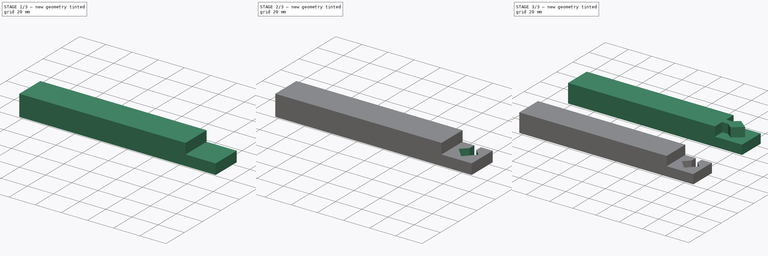
[diagram: build sequence overview — one tinted view per stage of 3, left to right]
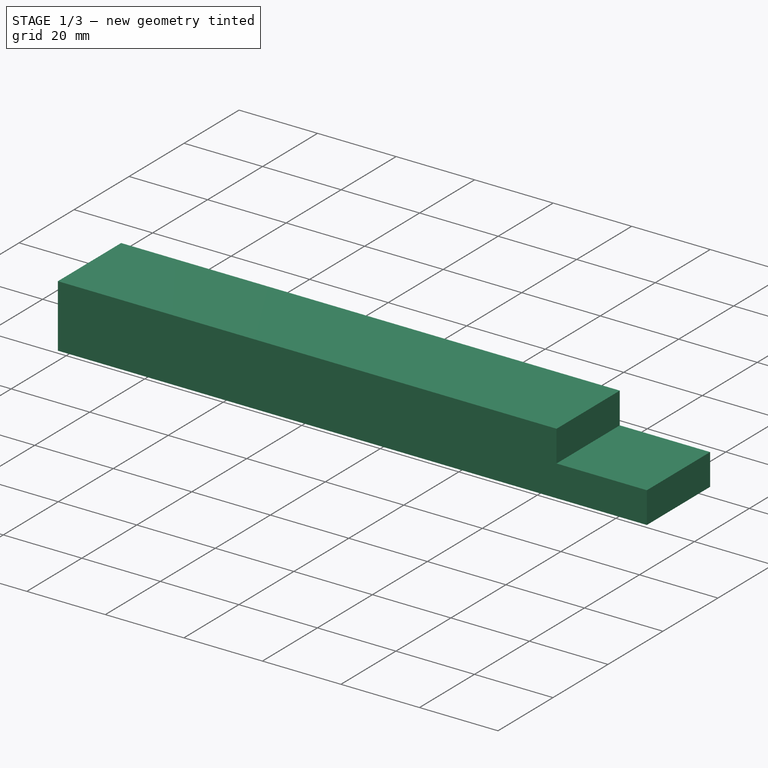
[diagram: stage 1 of 3 — iso view after this stage's code; geometry added in this stage tinted green]
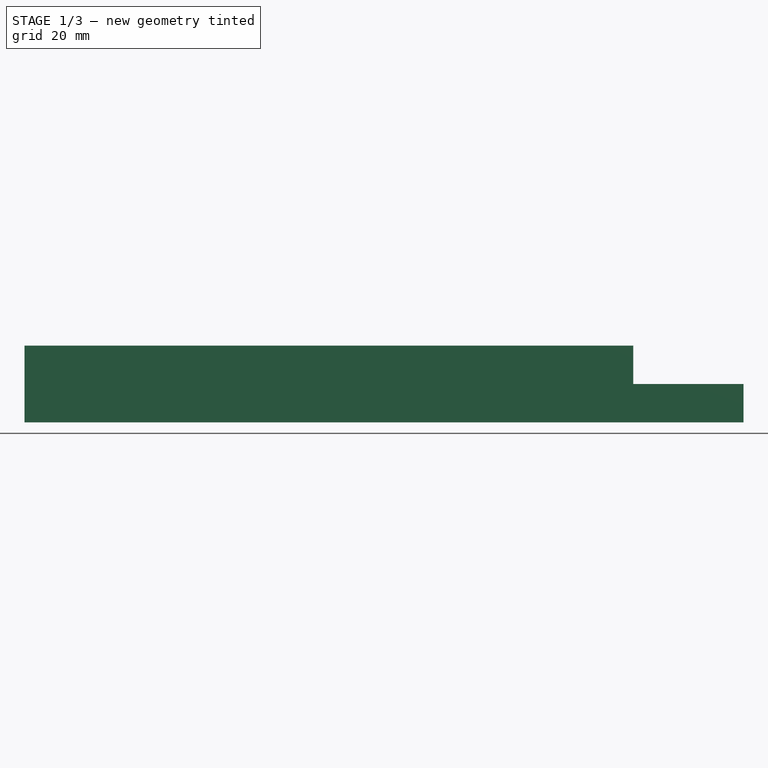
[diagram: stage 1 of 3 — front view after this stage's code; geometry added in this stage tinted green]
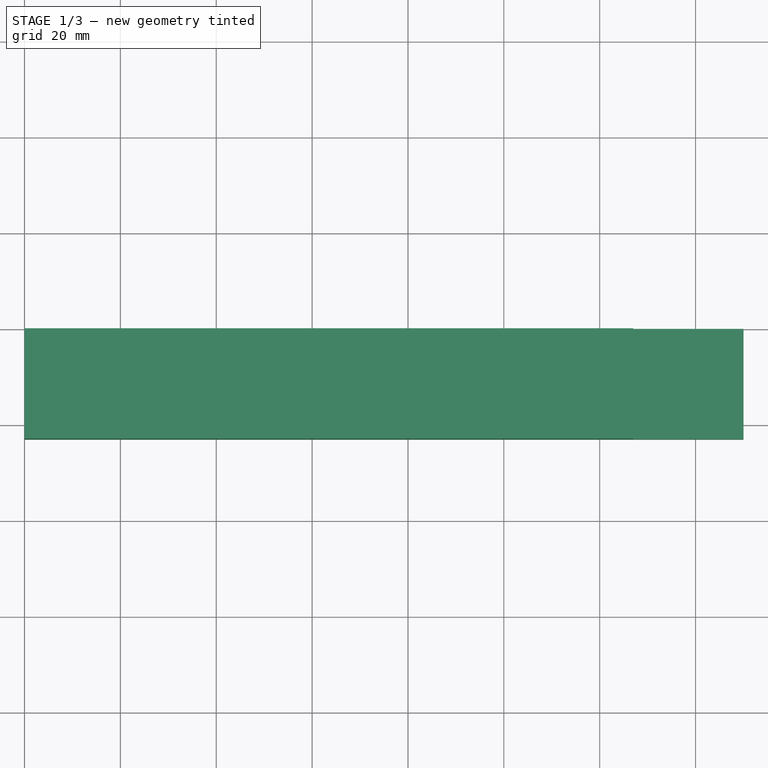
[diagram: stage 1 of 3 — top view after this stage's code; geometry added in this stage tinted green]
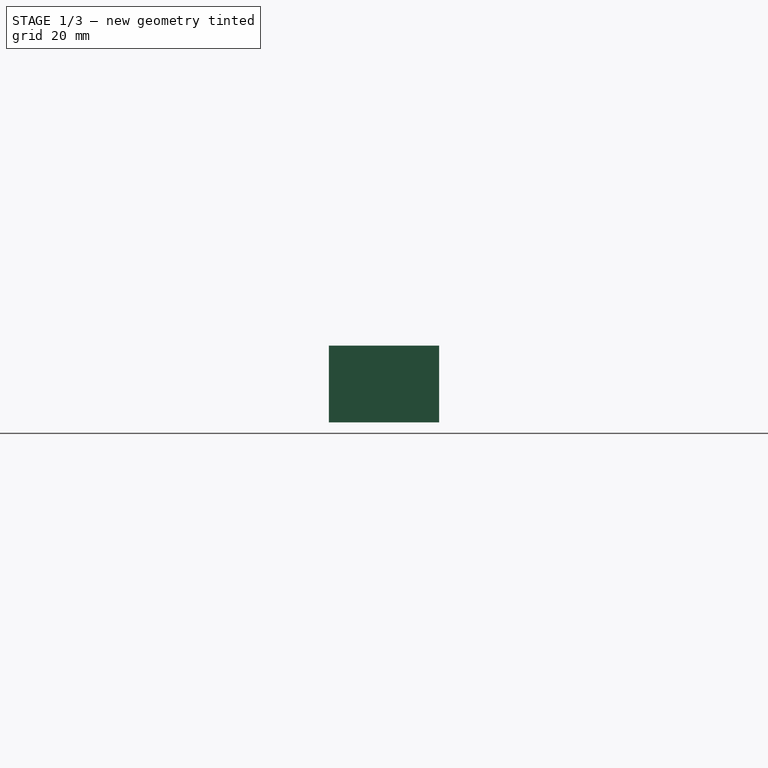
[diagram: stage 1 of 3 — right view after this stage's code; geometry added in this stage tinted green]
FCSTD DOCUMENT  (FreeCAD 0.18.3R)
Label: Puzzle_eckig
License: All rights reserved
LicenseURL: http://en.wikipedia.org/wiki/All_rights_reserved
objects: Sketcher::SketchObject×5, PartDesign::Pocket×3, PartDesign::Pad×2, PartDesign::Body×2
note: 17 computed .brp shape members not serialized (recipe doc carries the construction recipe); baked Part::Feature solids carry a one-line shape summary decoded from their .brp

FEATURE [Sketcher::SketchObject] Sketch003
  MapMode = 5
  Support = -> [XY_Plane001]
  sketch-geometry (4):
    g0: LineSegment StartX=0 StartY=-60 StartZ=0 EndX=150 EndY=-60 EndZ=0
    g1: LineSegment StartX=150 StartY=-60 StartZ=0 EndX=150 EndY=-83 EndZ=0
    g2: LineSegment StartX=150 StartY=-83 StartZ=0 EndX=0 EndY=-83 EndZ=0
    g3: LineSegment StartX=0 StartY=-83 StartZ=0 EndX=0 EndY=-60 EndZ=0
  constraints (12):
    c: Coincident(g0,g1)
    c: Coincident(g1,g2)
    c: Coincident(g2,g3)
    c: Coincident(g3,g0)
    c: Horizontal(g0)
    c: Horizontal(g2)
    c: Vertical(g1)
    c: Vertical(g3)
    c: DistanceY(g3,g3) = 23
    c: DistanceX(g0,g0) = 150
    c: Vertical(g0,g-1)
    c: DistanceY(g0,g-1) = 60
FEATURE [PartDesign::Pad] Pad001
  Length = 16
  Length2 = 100
  Profile = -> Sketch003
  Type = 0
FEATURE [PartDesign::Body] Body  label="Schlüssel"
  Group = -> [Sketch,Pad,Sketch001,Pocket]
  Origin = -> Origin
  Tip = -> Pocket
FEATURE [Sketcher::SketchObject] Sketch005
  ExternalGeometry = -> [Pad001]
  MapMode = 5
  Placement = pos=(0,0,16) rot=(0,0,1;0rad)
  Support = -> [Pad001]
  sketch-geometry (4):
    g0: LineSegment StartX=127 StartY=-58.207 StartZ=0 EndX=157 EndY=-58.207 EndZ=0
    g1: LineSegment StartX=157 StartY=-58.207 StartZ=0 EndX=157 EndY=-87.2765 EndZ=0
    g2: LineSegment StartX=157 StartY=-87.2765 StartZ=0 EndX=127 EndY=-87.2765 EndZ=0
    g3: LineSegment StartX=127 StartY=-87.2765 StartZ=0 EndX=127 EndY=-58.207 EndZ=0
  constraints (10):
    c: Coincident(g0,g1)
    c: Coincident(g1,g2)
    c: Coincident(g2,g3)
    c: Coincident(g3,g0)
    c: Horizontal(g0)
    c: Horizontal(g2)
    c: Vertical(g1)
    c: Vertical(g3)
    c: DistanceX(g0,g-3) = 23
    c: DistanceX(g2,g2) = 30
FEATURE [PartDesign::Pocket] Pocket001
  BaseFeature = -> Pad001
  Length = 8
  Length2 = 100
  Profile = -> Sketch005
  Type = 0
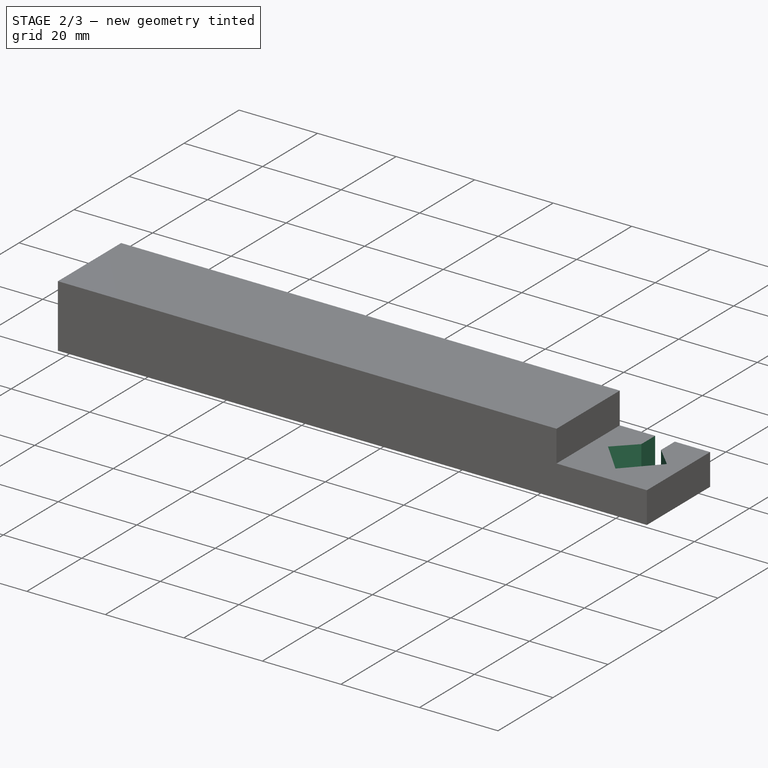
[diagram: stage 2 of 3 — iso view after this stage's code; geometry added in this stage tinted green]
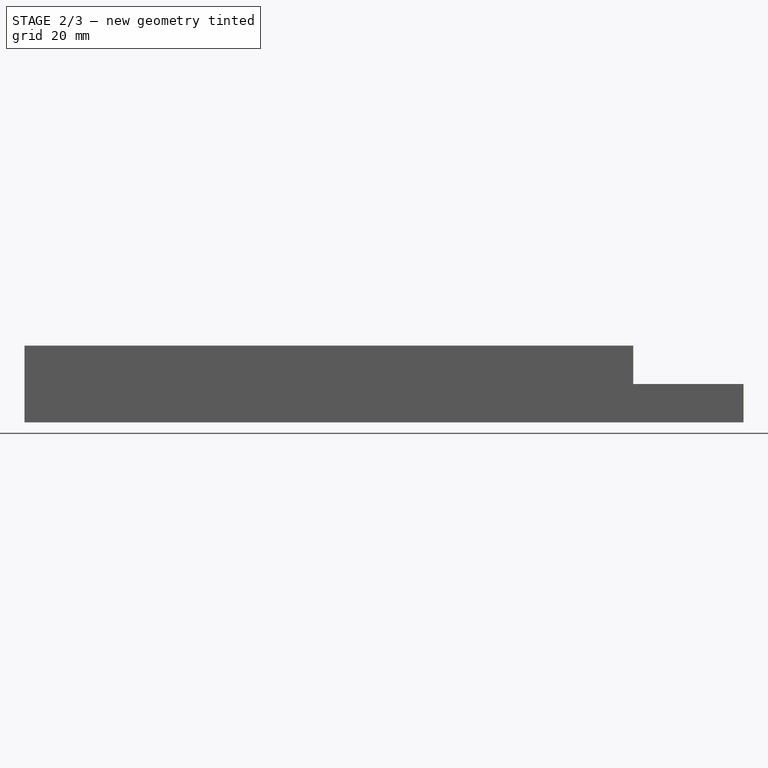
[diagram: stage 2 of 3 — front view after this stage's code; geometry added in this stage tinted green]
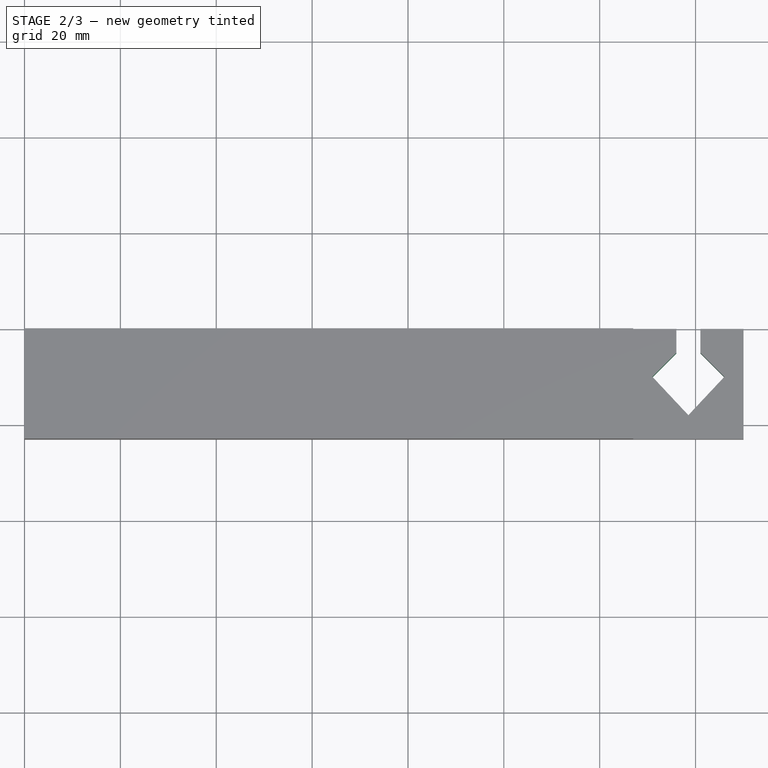
[diagram: stage 2 of 3 — top view after this stage's code; geometry added in this stage tinted green]
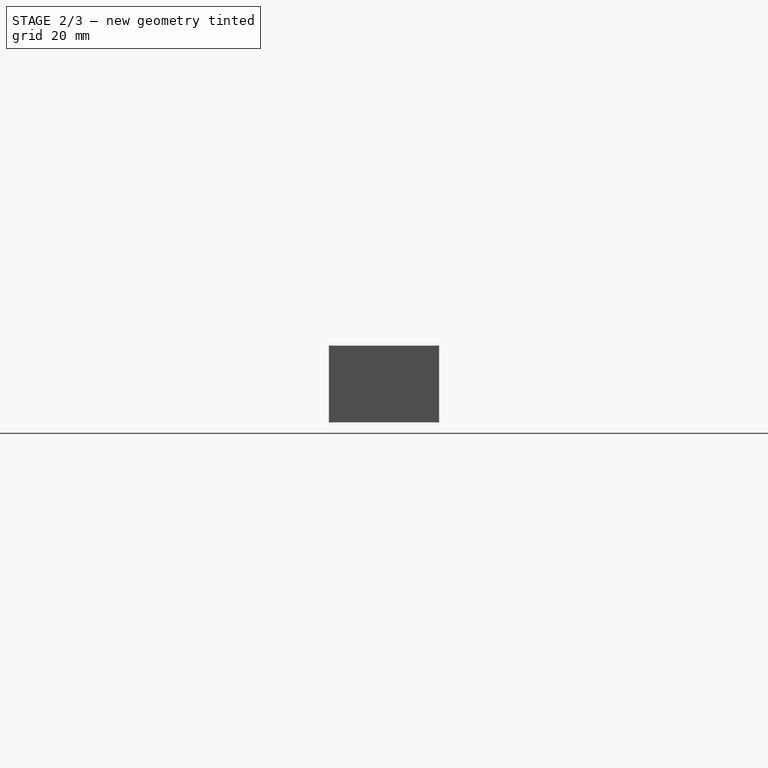
[diagram: stage 2 of 3 — right view after this stage's code; geometry added in this stage tinted green]
FEATURE [Sketcher::SketchObject] Sketch006
  ExternalGeometry = -> [Pocket001]
  MapMode = 5
  Placement = pos=(0,0,8) rot=(0,0,1;0rad)
  Support = -> [Pocket001]
  sketch-geometry (7):
    g0: LineSegment StartX=136 StartY=-55 StartZ=0 EndX=141 EndY=-55 EndZ=0
    g1: LineSegment StartX=141 StartY=-55 StartZ=0 EndX=141 EndY=-65 EndZ=0
    g2: LineSegment StartX=141 StartY=-65 StartZ=0 EndX=146 EndY=-70 EndZ=0
    g3: LineSegment StartX=146 StartY=-70 StartZ=0 EndX=138.5 EndY=-78 EndZ=0
    g4: LineSegment StartX=138.5 StartY=-78 StartZ=0 EndX=131 EndY=-70 EndZ=0
    g5: LineSegment StartX=131 StartY=-70 StartZ=0 EndX=136 EndY=-65 EndZ=0
    g6: LineSegment StartX=136 StartY=-65 StartZ=0 EndX=136 EndY=-55 EndZ=0
  constraints (21):
    c: Coincident(g0,g1)
    c: Coincident(g1,g2)
    c: Coincident(g2,g3)
    c: Coincident(g3,g4)
    c: Coincident(g4,g5)
    c: Coincident(g5,g6)
    c: Coincident(g6,g0)
    c: Horizontal(g0)
    c: Vertical(g6)
    c: Vertical(g1)
    c: Equal(g1,g6)
    c: DistanceY(g1,g1) = 10
    c: DistanceY(g-3,g0) = 5
    c: DistanceY(g2,g1) = 5
    c: DistanceY(g4,g5) = 5
    c: DistanceY(g3,g2) = 8
    c: DistanceX(g3,g-3) = 11.5
    c: DistanceX(g2,g2) = 5
    c: DistanceX(g0,g0) = 5
    c: DistanceX(g4,g5) = 5
    c: DistanceX(g2,g-3) = 4
FEATURE [PartDesign::Pocket] Pocket002
  BaseFeature = -> Pocket001
  Length = 10
  Length2 = 100
  Profile = -> Sketch006
  Type = 0
FEATURE [PartDesign::Body] Body001  label="Schloss"
  Group = -> [Sketch003,Pad001,Sketch005,Pocket001,Sketch006,Pocket002]
  Origin = -> Origin001
  Tip = -> Pocket002
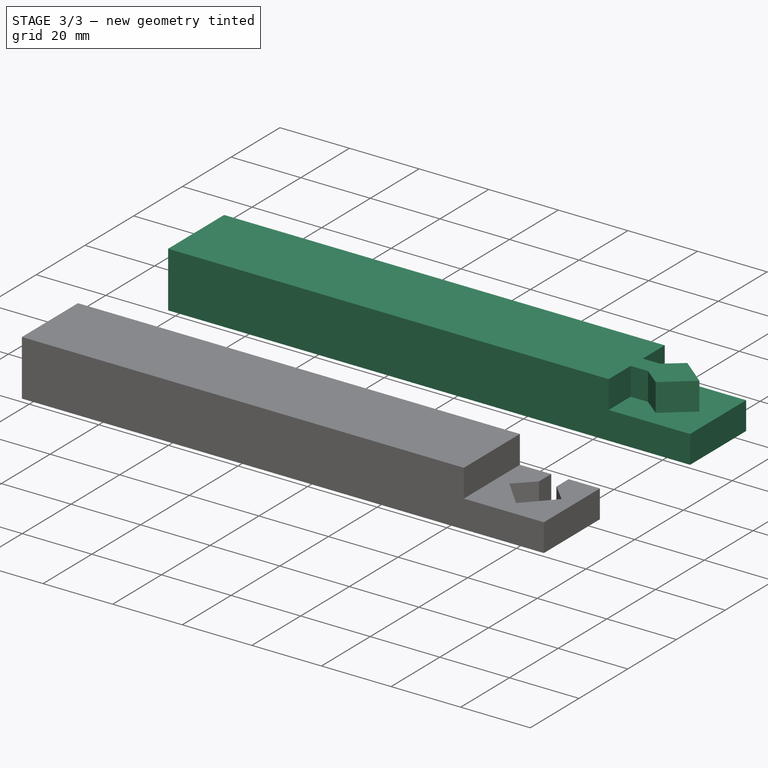
[diagram: stage 3 of 3 — iso view after this stage's code; geometry added in this stage tinted green]
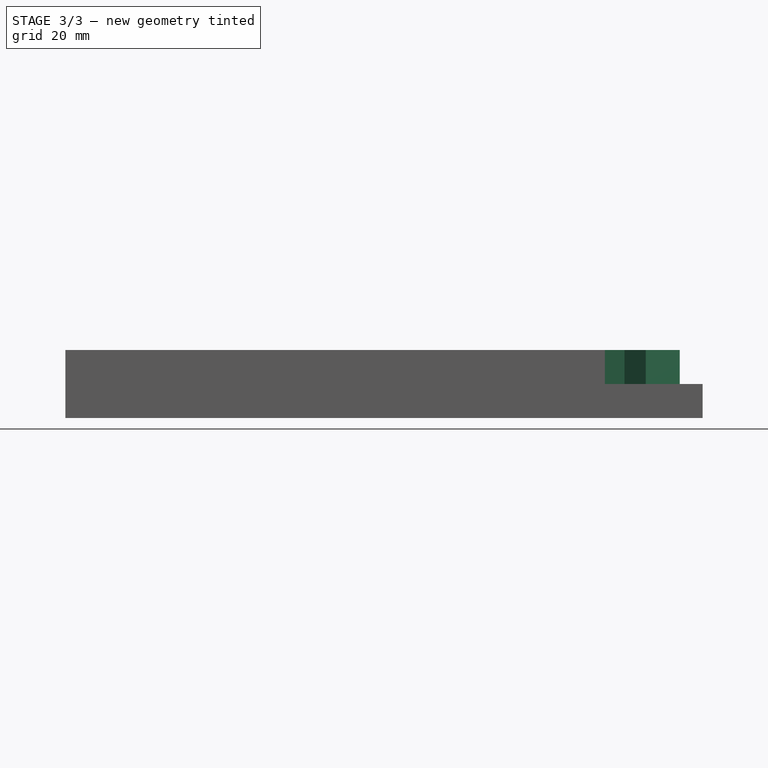
[diagram: stage 3 of 3 — front view after this stage's code; geometry added in this stage tinted green]
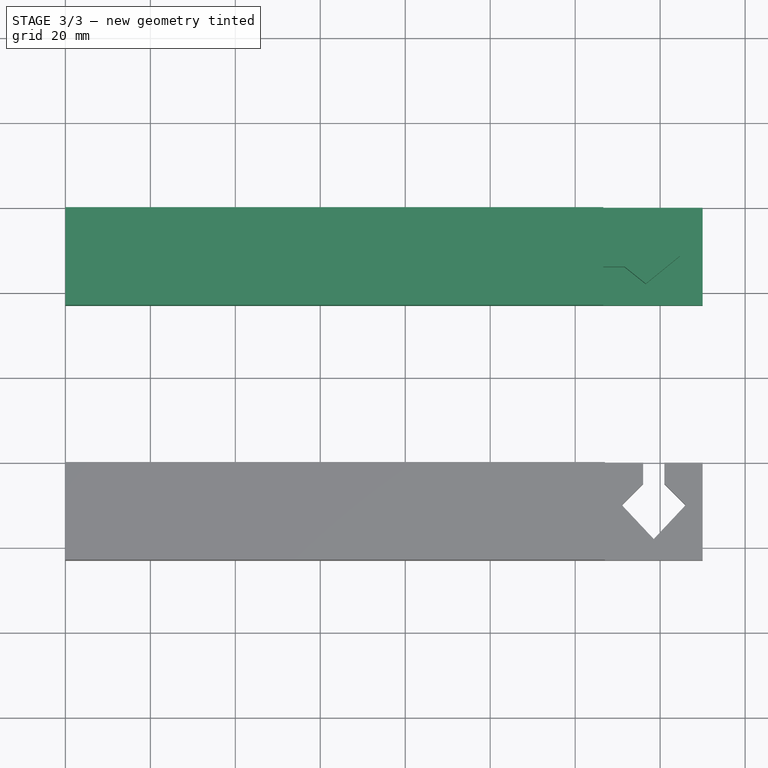
[diagram: stage 3 of 3 — top view after this stage's code; geometry added in this stage tinted green]
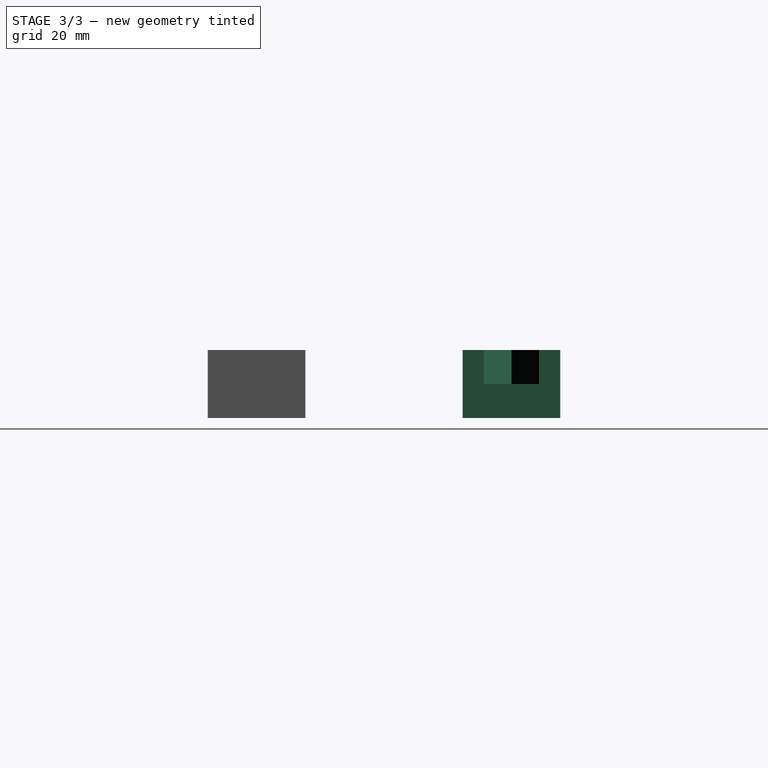
[diagram: stage 3 of 3 — right view after this stage's code; geometry added in this stage tinted green]
FEATURE [Sketcher::SketchObject] Sketch
  MapMode = 5
  Placement = pos=(0,0,16) rot=(0,0,1;0rad)
  Support = -> [Pad001]
  sketch-geometry (4):
    g0: LineSegment StartX=0 StartY=0 StartZ=0 EndX=150 EndY=0 EndZ=0
    g1: LineSegment StartX=150 StartY=0 StartZ=0 EndX=150 EndY=-23 EndZ=0
    g2: LineSegment StartX=150 StartY=-23 StartZ=0 EndX=0 EndY=-23 EndZ=0
    g3: LineSegment StartX=0 StartY=-23 StartZ=0 EndX=0 EndY=0 EndZ=0
  constraints (11):
    c: Coincident(g0,g1)
    c: Coincident(g1,g2)
    c: Coincident(g2,g3)
    c: Coincident(g3,g0)
    c: Horizontal(g0)
    c: Horizontal(g2)
    c: Vertical(g1)
    c: Vertical(g3)
    c: Coincident(g0,g-1)
    c: DistanceY(g3,g3) = 23
    c: DistanceX(g0,g0) = 150
FEATURE [PartDesign::Pad] Pad
  Length = 16
  Length2 = 100
  Profile = -> Sketch
  Type = 0
FEATURE [Sketcher::SketchObject] Sketch001
  ExternalGeometry = -> [Pad]
  MapMode = 5
  Placement = pos=(0,0,16) rot=(0,0,1;0rad)
  Support = -> [Pad]
  sketch-geometry (11):
    g0: LineSegment StartX=126.619 StartY=7 StartZ=0 EndX=156.619 EndY=7 EndZ=0
    g1: LineSegment StartX=156.619 StartY=7 StartZ=0 EndX=156.619 EndY=-30 EndZ=0
    g2: LineSegment StartX=156.619 StartY=-30 StartZ=0 EndX=126.619 EndY=-30 EndZ=0
    g3: LineSegment StartX=126.619 StartY=7 StartZ=0 EndX=126.619 EndY=-9 EndZ=0
    g4: LineSegment StartX=126.619 StartY=-9 StartZ=0 EndX=131.619 EndY=-9 EndZ=0
    g5: LineSegment StartX=131.619 StartY=-9 StartZ=0 EndX=136.619 EndY=-5 EndZ=0
    g6: LineSegment StartX=136.619 StartY=-5 StartZ=0 EndX=144.619 EndY=-11.5 EndZ=0
    g7: LineSegment StartX=144.619 StartY=-11.5 StartZ=0 EndX=136.619 EndY=-18 EndZ=0
    g8: LineSegment StartX=136.619 StartY=-18 StartZ=0 EndX=131.619 EndY=-14 EndZ=0
    g9: LineSegment StartX=131.619 StartY=-14 StartZ=0 EndX=126.619 EndY=-14 EndZ=0
    g10: LineSegment StartX=126.619 StartY=-14 StartZ=0 EndX=126.619 EndY=-30 EndZ=0
  constraints (32):
    c: Coincident(g0,g1)
    c: Coincident(g1,g2)
    c: Horizontal(g0)
    c: Horizontal(g2)
    c: Vertical(g1)
    c: DistanceY(g2,g0) = 37
    c: Coincident(g3,g4)
    c: Coincident(g4,g5)
    c: Coincident(g5,g6)
    c: Coincident(g6,g7)
    c: Coincident(g7,g8)
    c: Coincident(g8,g9)
    c: Coincident(g9,g10)
    c: Coincident(g3,g0)
    c: Coincident(g2,g10)
    c: Vertical(g10)
    c: Vertical(g3)
    c: DistanceX(g0,g0) = 30
    c: Equal(g0,g2)
    c: Horizontal(g9)
    c: Horizontal(g4)
    c: DistanceX(g9,g9) = 5
    c: Equal(g4,g9)
    c: DistanceX(g8,g7) = 5
    c: DistanceX(g7,g6) = 8
    c: DistanceY(g3,g-3) = 9
    c: DistanceY(g-4,g9) = 9
    c: DistanceX(g5,g6) = 8
    c: DistanceY(g-4,g6) = 11.5
    c: DistanceY(g5,g-3) = 5
    c: DistanceY(g-4,g7) = 5
    c: DistanceY(g-3,g0) = 7
FEATURE [PartDesign::Pocket] Pocket
  BaseFeature = -> Pad
  Length = 8
  Length2 = 100
  Profile = -> Sketch001
  Type = 0
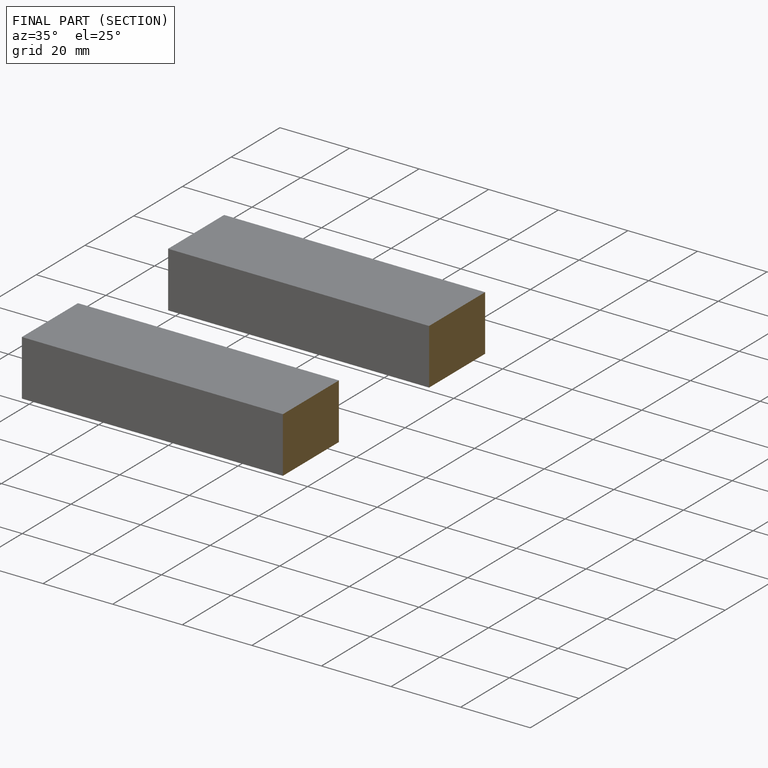
[diagram: finished part — half-section view (interior)]
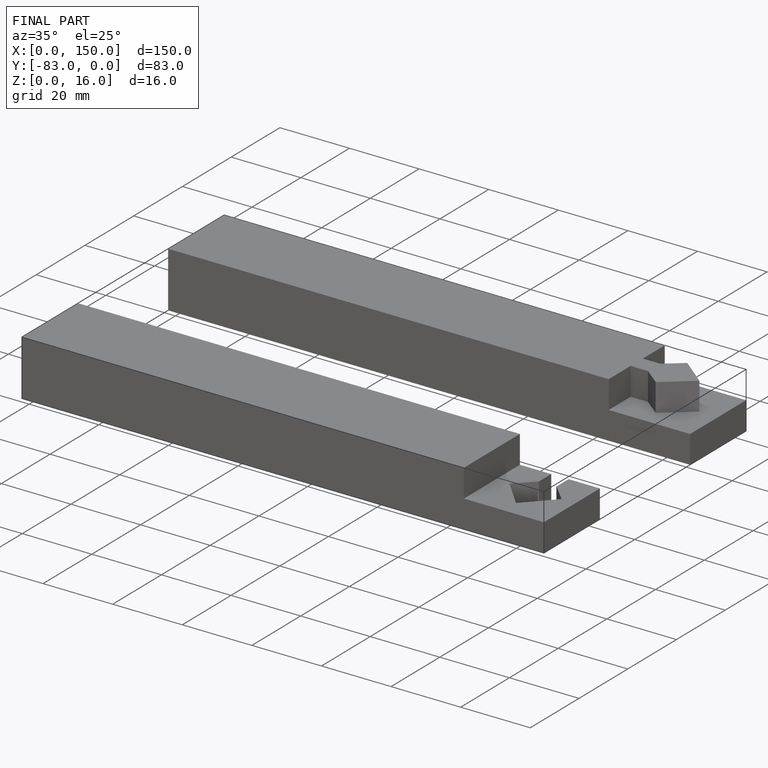
[diagram: finished part — iso view with bounding-box wireframe]
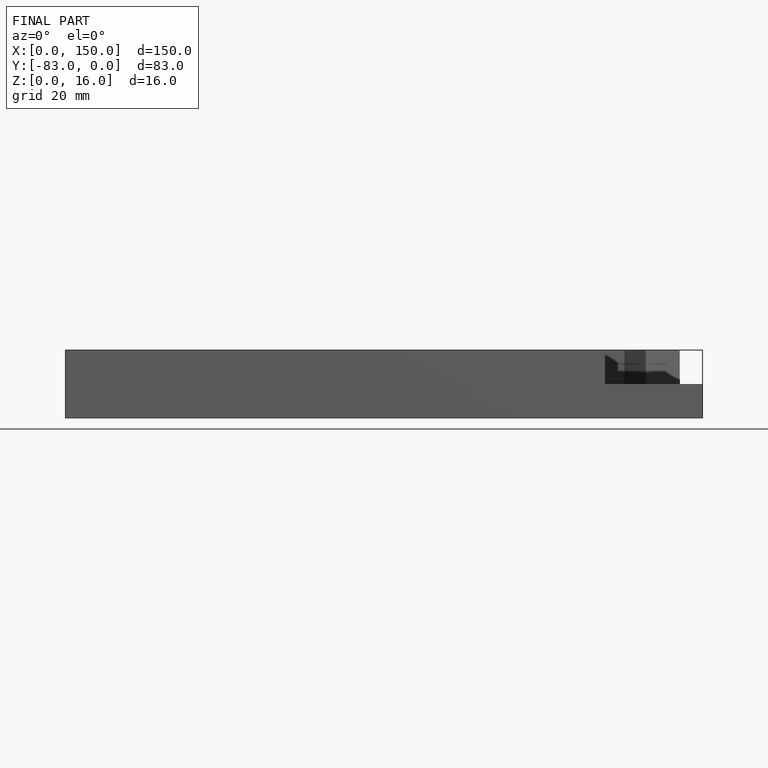
[diagram: finished part — front view with bounding-box wireframe]
